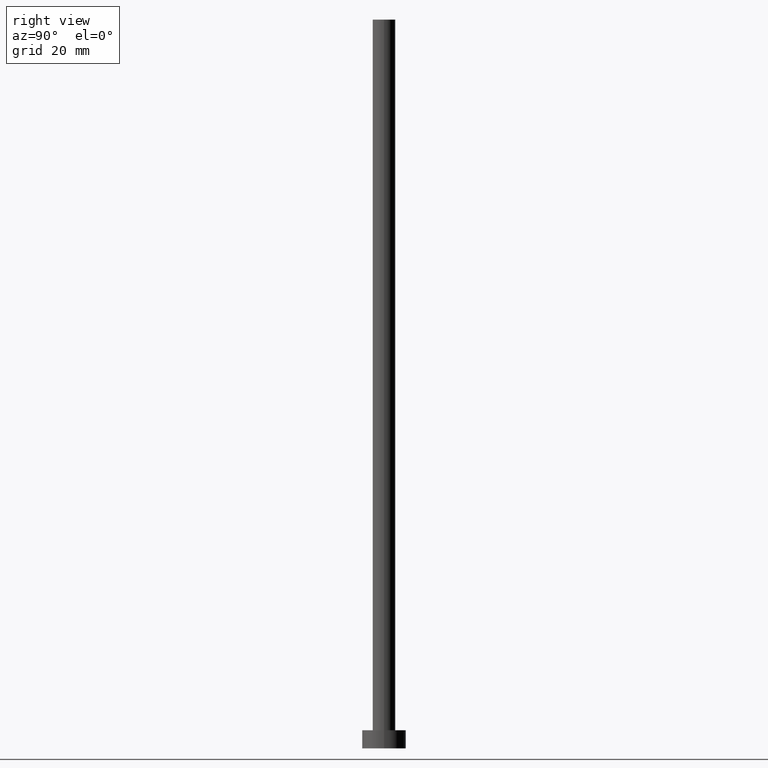
[diagram: clean part render]
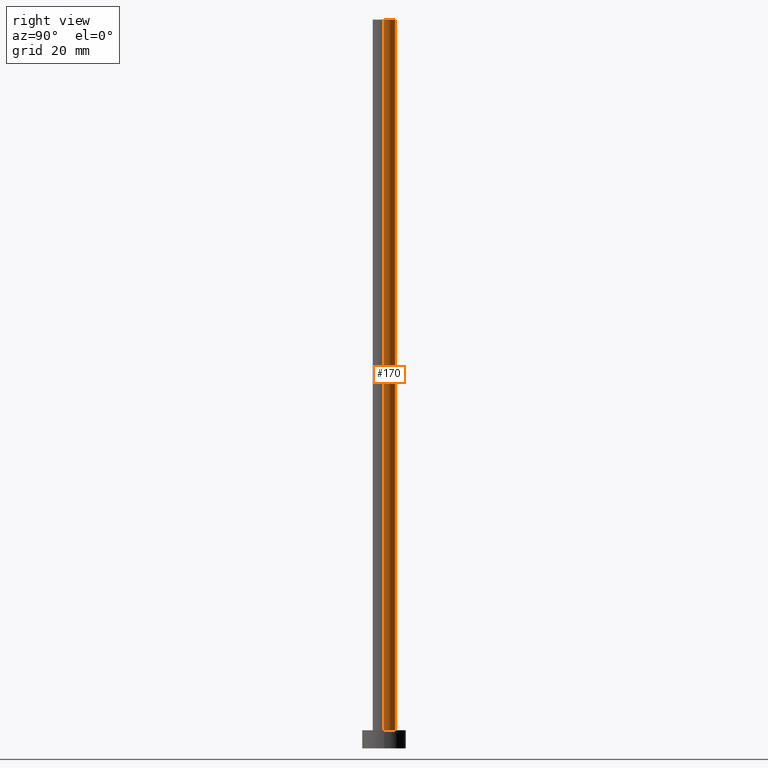
[diagram: same view with one face highlighted and labeled with its STEP entity id]
A machine part, right view. The second image highlights one B-rep face of the part: STEP entity #170.
In plain terms, the highlighted cylindrical surface (edge-blend (fillet) strip) has radius 3.1 mm, axis along (-0, -0, -1).
Its self-contained STEP definition (entity closure, byte-faithful):
#2 = EDGE_CURVE ( 'NONE', #82, #164, #57, .T. ) ;
#5 = EDGE_LOOP ( 'NONE', ( #116, #53, #162, #35 ) ) ;
#24 = CARTESIAN_POINT ( 'NONE',  ( 0.000000000000000000, 0.000000000000000000, 5.000000000000000000 ) ) ;
#28 = DIRECTION ( 'NONE',  ( -1.000000000000000000, 0.000000000000000000, 0.000000000000000000 ) ) ;
#35 = ORIENTED_EDGE ( 'NONE', *, *, #2, .F. ) ;
#45 = CYLINDRICAL_SURFACE ( 'NONE', #158, 3.100000000000000089 ) ;
#53 = ORIENTED_EDGE ( 'NONE', *, *, #254, .T. ) ;
#57 = LINE ( 'NONE', #118, #175 ) ;
#62 = CARTESIAN_POINT ( 'NONE',  ( 0.000000000000000000, 0.000000000000000000, 200.0000000000000000 ) ) ;
#63 = AXIS2_PLACEMENT_3D ( 'NONE', #251, #127, #248 ) ;
#82 = VERTEX_POINT ( 'NONE', #246 ) ;
#91 = EDGE_CURVE ( 'NONE', #216, #164, #145, .T. ) ;
#92 = LINE ( 'NONE', #226, #95 ) ;
#94 = EDGE_CURVE ( 'NONE', #101, #82, #131, .T. ) ;
#95 = VECTOR ( 'NONE', #128, 1000.000000000000000 ) ;
#101 = VERTEX_POINT ( 'NONE', #129 ) ;
#107 = DIRECTION ( 'NONE',  ( 0.000000000000000000, 0.000000000000000000, 1.000000000000000000 ) ) ;
#116 = ORIENTED_EDGE ( 'NONE', *, *, #94, .F. ) ;
#118 = CARTESIAN_POINT ( 'NONE',  ( -3.100000000000000089, 0.000000000000000000, 200.0000000000000000 ) ) ;
#127 = DIRECTION ( 'NONE',  ( 0.000000000000000000, 0.000000000000000000, 1.000000000000000000 ) ) ;
#128 = DIRECTION ( 'NONE',  ( -0.000000000000000000, -0.000000000000000000, -1.000000000000000000 ) ) ;
#129 = CARTESIAN_POINT ( 'NONE',  ( 3.100000000000000089, 3.796405077356794918E-16, 200.0000000000000000 ) ) ;
#131 = CIRCLE ( 'NONE', #63, 3.100000000000000089 ) ;
#145 = CIRCLE ( 'NONE', #180, 3.100000000000000089 ) ;
#158 = AXIS2_PLACEMENT_3D ( 'NONE', #62, #209, #28 ) ;
#162 = ORIENTED_EDGE ( 'NONE', *, *, #91, .T. ) ;
#164 = VERTEX_POINT ( 'NONE', #193 ) ;
#170 = ADVANCED_FACE ( 'NONE', ( #230 ), #45, .T. ) ;
#171 = CARTESIAN_POINT ( 'NONE',  ( 3.100000000000000089, 3.796405077356794918E-16, 5.000000000000000000 ) ) ;
#175 = VECTOR ( 'NONE', #219, 1000.000000000000000 ) ;
#180 = AXIS2_PLACEMENT_3D ( 'NONE', #24, #107, #189 ) ;
#189 = DIRECTION ( 'NONE',  ( 1.000000000000000000, 0.000000000000000000, 0.000000000000000000 ) ) ;
#193 = CARTESIAN_POINT ( 'NONE',  ( -3.100000000000000089, 0.000000000000000000, 5.000000000000000000 ) ) ;
#209 = DIRECTION ( 'NONE',  ( -0.000000000000000000, -0.000000000000000000, -1.000000000000000000 ) ) ;
#216 = VERTEX_POINT ( 'NONE', #171 ) ;
#219 = DIRECTION ( 'NONE',  ( -0.000000000000000000, -0.000000000000000000, -1.000000000000000000 ) ) ;
#226 = CARTESIAN_POINT ( 'NONE',  ( 3.100000000000000089, 3.796405077356794918E-16, 200.0000000000000000 ) ) ;
#230 = FACE_OUTER_BOUND ( 'NONE', #5, .T. ) ;
#246 = CARTESIAN_POINT ( 'NONE',  ( -3.100000000000000089, 0.000000000000000000, 200.0000000000000000 ) ) ;
#248 = DIRECTION ( 'NONE',  ( 1.000000000000000000, 0.000000000000000000, 0.000000000000000000 ) ) ;
#251 = CARTESIAN_POINT ( 'NONE',  ( 0.000000000000000000, 0.000000000000000000, 200.0000000000000000 ) ) ;
#254 = EDGE_CURVE ( 'NONE', #101, #216, #92, .T. ) ;